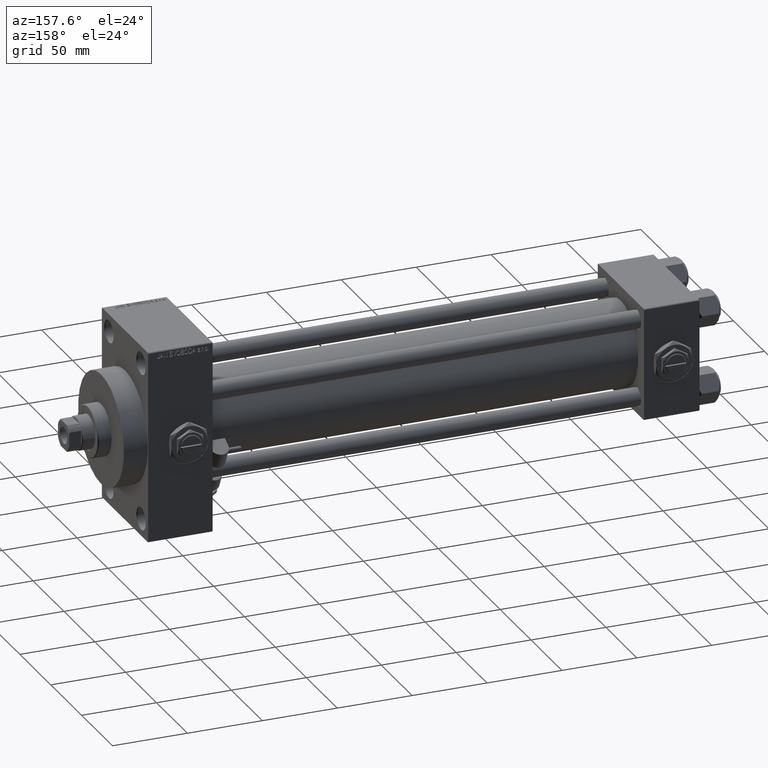
[diagram: clean part render]
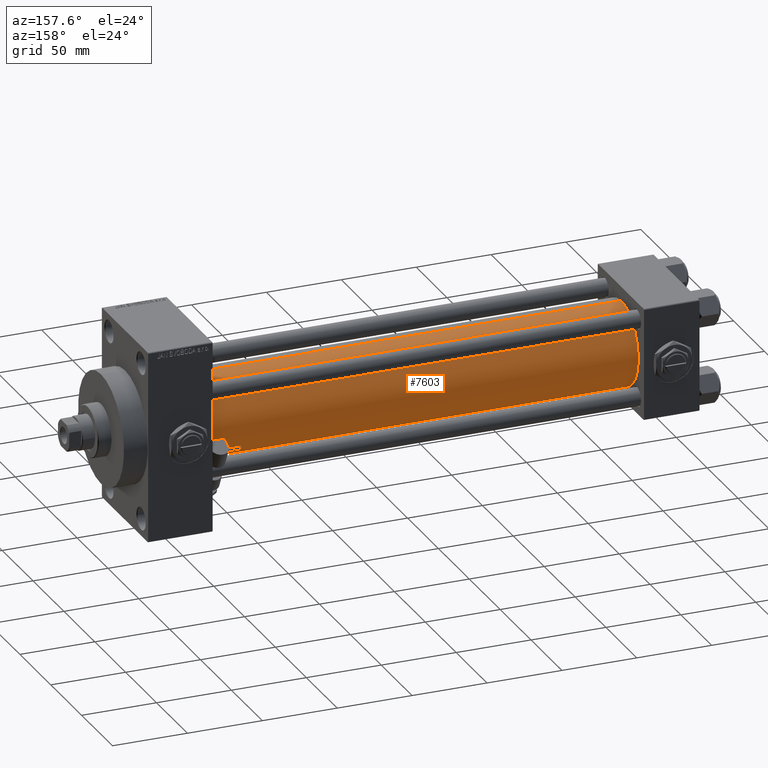
[diagram: same view with one face highlighted and labeled with its STEP entity id]
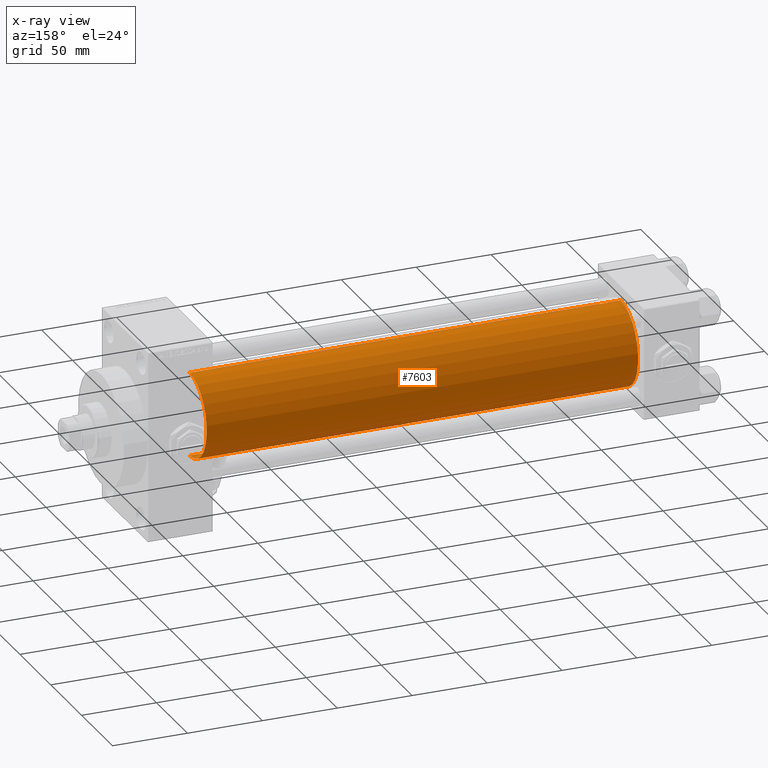
[diagram: x-ray of the same camera — body ghosted, the highlighted face saturated]
A machine part, auxiliary view. The second image highlights one B-rep face of the part: STEP entity #7603.
The next image is the same camera in x-ray: the body ghosted, the highlighted face saturated — about 0% of this face is hidden behind the body in this view.
In plain terms, the highlighted cylindrical surface (partial cylindrical patch) has radius 28 mm, axis along (-1, -0, -0).
Its self-contained STEP definition (entity closure, byte-faithful):
#723 = CARTESIAN_POINT ( 'NONE',  ( 324.9999999999999432, -2.602085213965210642E-15, 28.00000000000000000 ) ) ;
#2910 = CYLINDRICAL_SURFACE ( 'NONE', #47817, 28.00000000000000000 ) ;
#4697 = ORIENTED_EDGE ( 'NONE', *, *, #48577, .T. ) ;
#6989 = DIRECTION ( 'NONE',  ( 0.000000000000000000, 0.000000000000000000, 1.000000000000000000 ) ) ;
#7132 = VERTEX_POINT ( 'NONE', #723 ) ;
#7603 = ADVANCED_FACE ( 'NONE', ( #14101 ), #2910, .T. ) ;
#7745 = CARTESIAN_POINT ( 'NONE',  ( 36.99999999999997868, -2.602085213965210642E-15, 28.00000000000000000 ) ) ;
#9528 = ORIENTED_EDGE ( 'NONE', *, *, #48483, .F. ) ;
#10537 = DIRECTION ( 'NONE',  ( -1.000000000000000000, -0.000000000000000000, -0.000000000000000000 ) ) ;
#11030 = ORIENTED_EDGE ( 'NONE', *, *, #39098, .T. ) ;
#12011 = LINE ( 'NONE', #20141, #46291 ) ;
#12839 = EDGE_LOOP ( 'NONE', ( #9528, #4697, #11030, #42980 ) ) ;
#13458 = CIRCLE ( 'NONE', #46795, 28.00000000000000000 ) ;
#14101 = FACE_OUTER_BOUND ( 'NONE', #12839, .T. ) ;
#16081 = DIRECTION ( 'NONE',  ( 0.000000000000000000, 0.000000000000000000, -1.000000000000000000 ) ) ;
#17516 = CARTESIAN_POINT ( 'NONE',  ( 36.99999999999997868, -2.602085213965210642E-15, 0.000000000000000000 ) ) ;
#17837 = AXIS2_PLACEMENT_3D ( 'NONE', #31365, #23714, #16081 ) ;
#20141 = CARTESIAN_POINT ( 'NONE',  ( 324.9999999999999432, 8.269258236473784371E-16, -28.00000000000000000 ) ) ;
#20921 = DIRECTION ( 'NONE',  ( -1.000000000000000000, -0.000000000000000000, -0.000000000000000000 ) ) ;
#23714 = DIRECTION ( 'NONE',  ( 1.000000000000000000, 0.000000000000000000, 0.000000000000000000 ) ) ;
#25494 = VERTEX_POINT ( 'NONE', #46933 ) ;
#26756 = VERTEX_POINT ( 'NONE', #7745 ) ;
#27534 = CARTESIAN_POINT ( 'NONE',  ( 324.9999999999999432, 8.269258236473784371E-16, -28.00000000000000000 ) ) ;
#28809 = LINE ( 'NONE', #48650, #37298 ) ;
#29227 = DIRECTION ( 'NONE',  ( 1.000000000000000000, -0.000000000000000000, 0.000000000000000000 ) ) ;
#31365 = CARTESIAN_POINT ( 'NONE',  ( 324.9999999999999432, -2.602085213965210642E-15, 0.000000000000000000 ) ) ;
#37298 = VECTOR ( 'NONE', #20921, 1000.000000000000000 ) ;
#37742 = CARTESIAN_POINT ( 'NONE',  ( 324.9999999999999432, -2.602085213965210642E-15, 0.000000000000000000 ) ) ;
#39098 = EDGE_CURVE ( 'NONE', #25494, #26756, #13458, .T. ) ;
#39716 = DIRECTION ( 'NONE',  ( -1.000000000000000000, -0.000000000000000000, -0.000000000000000000 ) ) ;
#39864 = VERTEX_POINT ( 'NONE', #27534 ) ;
#40609 = CIRCLE ( 'NONE', #17837, 28.00000000000000000 ) ;
#41427 = DIRECTION ( 'NONE',  ( 0.000000000000000000, 0.000000000000000000, 1.000000000000000000 ) ) ;
#42980 = ORIENTED_EDGE ( 'NONE', *, *, #47380, .F. ) ;
#46291 = VECTOR ( 'NONE', #39716, 1000.000000000000000 ) ;
#46795 = AXIS2_PLACEMENT_3D ( 'NONE', #17516, #29227, #41427 ) ;
#46933 = CARTESIAN_POINT ( 'NONE',  ( 36.99999999999997868, 8.269258236473784371E-16, -28.00000000000000000 ) ) ;
#47380 = EDGE_CURVE ( 'NONE', #7132, #26756, #28809, .T. ) ;
#47817 = AXIS2_PLACEMENT_3D ( 'NONE', #37742, #10537, #6989 ) ;
#48483 = EDGE_CURVE ( 'NONE', #39864, #7132, #40609, .T. ) ;
#48577 = EDGE_CURVE ( 'NONE', #39864, #25494, #12011, .T. ) ;
#48650 = CARTESIAN_POINT ( 'NONE',  ( 324.9999999999999432, -2.602085213965210642E-15, 28.00000000000000000 ) ) ;